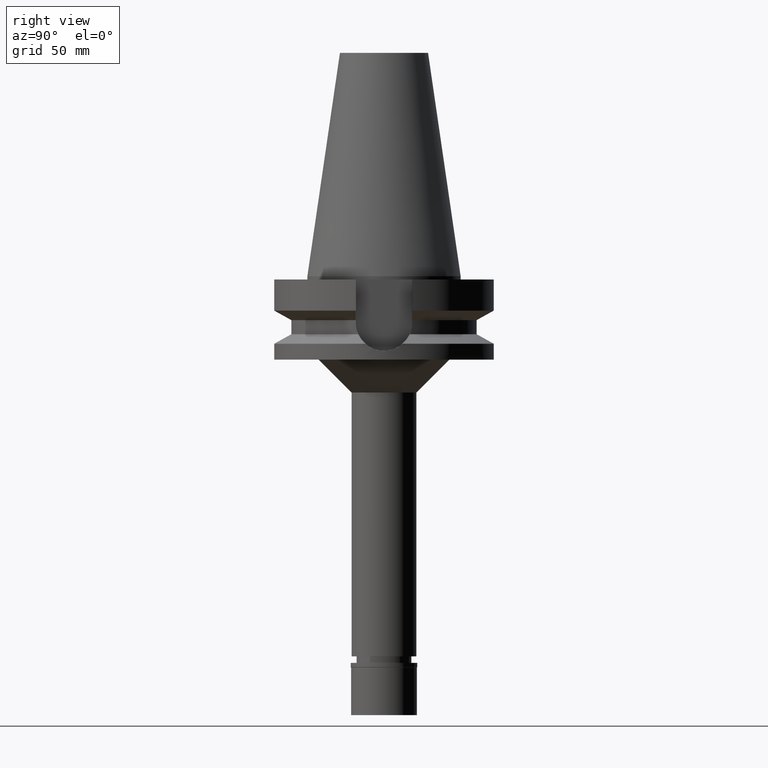
[diagram: clean part render]
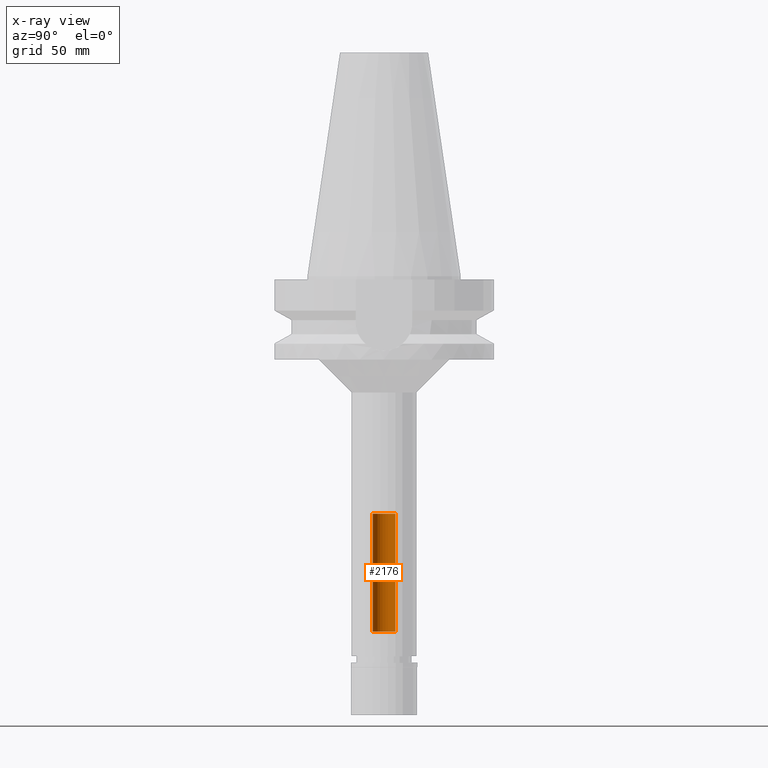
[diagram: x-ray — body ghosted, one internal face saturated and labeled with its STEP entity id]
A machine part, right view, then the same camera in x-ray: the body is ghosted and one INTERNAL B-rep face — a face not visible from any outside direction — is saturated and labeled: STEP entity #2176.
In plain terms, the highlighted cylindrical surface (edge-blend (fillet) strip) has radius 5.2 mm, axis along (0, 0, -1).
Its self-contained STEP definition (entity closure, byte-faithful):
#15 = AXIS2_PLACEMENT_3D ( 'NONE', #2685, #1244, #1953 ) ;
#103 = ORIENTED_EDGE ( 'NONE', *, *, #2747, .T. ) ;
#235 = FACE_OUTER_BOUND ( 'NONE', #799, .T. ) ;
#567 = VECTOR ( 'NONE', #2110, 1000.000000000000000 ) ;
#619 = AXIS2_PLACEMENT_3D ( 'NONE', #637, #2593, #2339 ) ;
#637 = CARTESIAN_POINT ( 'NONE',  ( 0.0000000000000000000, 2.650013208674999776E-14, -108.2000000000000028 ) ) ;
#799 = EDGE_LOOP ( 'NONE', ( #1250, #2913, #950, #103 ) ) ;
#816 = CIRCLE ( 'NONE', #619, 5.200000000000000178 ) ;
#869 = LINE ( 'NONE', #1423, #567 ) ;
#882 = CARTESIAN_POINT ( 'NONE',  ( 0.0000000000000000000, -5.200000000000000178, -162.0000000000000000 ) ) ;
#950 = ORIENTED_EDGE ( 'NONE', *, *, #1880, .T. ) ;
#1083 = AXIS2_PLACEMENT_3D ( 'NONE', #2932, #1458, #2435 ) ;
#1244 = DIRECTION ( 'NONE',  ( 0.0000000000000000000, 0.0000000000000000000, -1.000000000000000000 ) ) ;
#1250 = ORIENTED_EDGE ( 'NONE', *, *, #2482, .T. ) ;
#1283 = CIRCLE ( 'NONE', #1083, 5.200000000000000178 ) ;
#1377 = EDGE_CURVE ( 'NONE', #1994, #3129, #2694, .T. ) ;
#1423 = CARTESIAN_POINT ( 'NONE',  ( 0.0000000000000000000, 5.200000000000000178, -162.0000000000000000 ) ) ;
#1432 = VECTOR ( 'NONE', #1772, 1000.000000000000000 ) ;
#1458 = DIRECTION ( 'NONE',  ( 0.0000000000000000000, 0.0000000000000000000, -1.000000000000000000 ) ) ;
#1610 = CARTESIAN_POINT ( 'NONE',  ( 0.0000000000000000000, -5.200000000000000178, -108.2000000000000028 ) ) ;
#1697 = CYLINDRICAL_SURFACE ( 'NONE', #15, 5.200000000000000178 ) ;
#1767 = CARTESIAN_POINT ( 'NONE',  ( 0.0000000000000000000, 5.200000000000000178, -162.0000000000000000 ) ) ;
#1772 = DIRECTION ( 'NONE',  ( 0.0000000000000000000, 0.0000000000000000000, 1.000000000000000000 ) ) ;
#1880 = EDGE_CURVE ( 'NONE', #1994, #2494, #1283, .T. ) ;
#1953 = DIRECTION ( 'NONE',  ( 0.0000000000000000000, -1.000000000000000000, 0.0000000000000000000 ) ) ;
#1972 = VERTEX_POINT ( 'NONE', #2372 ) ;
#1994 = VERTEX_POINT ( 'NONE', #882 ) ;
#2011 = CARTESIAN_POINT ( 'NONE',  ( 0.0000000000000000000, -5.200000000000000178, -162.0000000000000000 ) ) ;
#2110 = DIRECTION ( 'NONE',  ( 0.0000000000000000000, 0.0000000000000000000, 1.000000000000000000 ) ) ;
#2176 = ADVANCED_FACE ( 'NONE', ( #235 ), #1697, .F. ) ;
#2339 = DIRECTION ( 'NONE',  ( 0.0000000000000000000, 1.000000000000000000, 0.0000000000000000000 ) ) ;
#2372 = CARTESIAN_POINT ( 'NONE',  ( 0.0000000000000000000, 5.200000000000000178, -108.2000000000000028 ) ) ;
#2435 = DIRECTION ( 'NONE',  ( 0.0000000000000000000, -1.000000000000000000, 0.0000000000000000000 ) ) ;
#2482 = EDGE_CURVE ( 'NONE', #1972, #3129, #816, .T. ) ;
#2494 = VERTEX_POINT ( 'NONE', #1767 ) ;
#2593 = DIRECTION ( 'NONE',  ( 0.0000000000000000000, 0.0000000000000000000, 1.000000000000000000 ) ) ;
#2685 = CARTESIAN_POINT ( 'NONE',  ( 0.0000000000000000000, 2.650013208674999776E-14, 116.3899999999999864 ) ) ;
#2694 = LINE ( 'NONE', #2011, #1432 ) ;
#2747 = EDGE_CURVE ( 'NONE', #2494, #1972, #869, .T. ) ;
#2913 = ORIENTED_EDGE ( 'NONE', *, *, #1377, .F. ) ;
#2932 = CARTESIAN_POINT ( 'NONE',  ( 0.0000000000000000000, 2.650013208674999776E-14, -162.0000000000000000 ) ) ;
#3129 = VERTEX_POINT ( 'NONE', #1610 ) ;